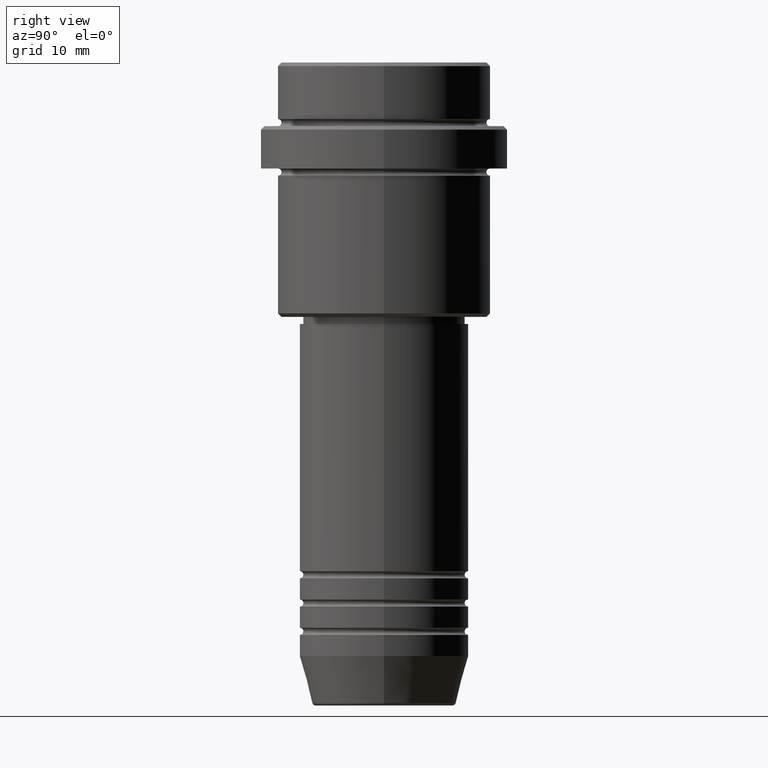
[diagram: clean part render]
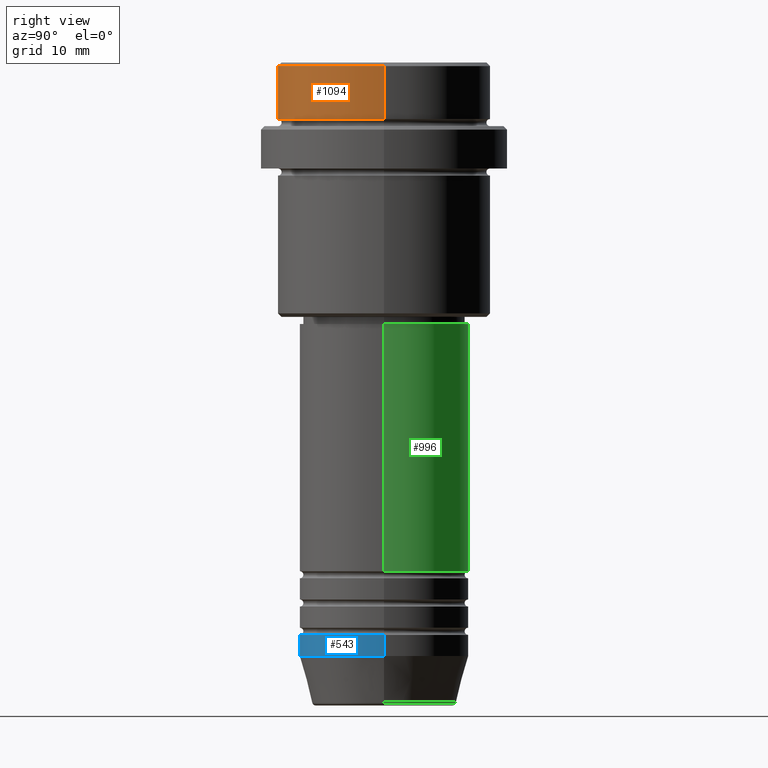
[diagram: same view with three faces highlighted in distinct colors, each labeled with its STEP entity id]
A machine part, right view with three faces highlighted in distinct colors.
Their STEP definitions:

[orange] entity #1094 — the highlighted cylindrical surface (partial cylindrical patch) has radius 15 mm, axis along (-0, -0, 1).
#65 = LINE ( 'NONE', #1151, #299 ) ;
#105 = CARTESIAN_POINT ( 'NONE',  ( 15.00000000000000000, 0.000000000000000000, -7.999999999999998224 ) ) ;
#112 = AXIS2_PLACEMENT_3D ( 'NONE', #682, #929, #1339 ) ;
#152 = CIRCLE ( 'NONE', #1167, 15.00000000000000000 ) ;
#202 = DIRECTION ( 'NONE',  ( 0.000000000000000000, 0.000000000000000000, -1.000000000000000000 ) ) ;
#210 = DIRECTION ( 'NONE',  ( 1.000000000000000000, 0.000000000000000000, 0.000000000000000000 ) ) ;
#288 = CARTESIAN_POINT ( 'NONE',  ( -15.00000000000000000, 1.836970198721029589E-15, 0.000000000000000000 ) ) ;
#299 = VECTOR ( 'NONE', #1061, 1000.000000000000000 ) ;
#306 = VERTEX_POINT ( 'NONE', #957 ) ;
#363 = CYLINDRICAL_SURFACE ( 'NONE', #807, 15.00000000000000000 ) ;
#375 = ORIENTED_EDGE ( 'NONE', *, *, #425, .F. ) ;
#425 = EDGE_CURVE ( 'NONE', #1004, #306, #1272, .T. ) ;
#443 = EDGE_LOOP ( 'NONE', ( #375, #1291, #714, #626 ) ) ;
#487 = EDGE_CURVE ( 'NONE', #601, #306, #152, .T. ) ;
#601 = VERTEX_POINT ( 'NONE', #784 ) ;
#617 = DIRECTION ( 'NONE',  ( 1.000000000000000000, 0.000000000000000000, 0.000000000000000000 ) ) ;
#626 = ORIENTED_EDGE ( 'NONE', *, *, #487, .T. ) ;
#682 = CARTESIAN_POINT ( 'NONE',  ( 0.000000000000000000, 0.000000000000000000, -7.999999999999998224 ) ) ;
#714 = ORIENTED_EDGE ( 'NONE', *, *, #792, .T. ) ;
#715 = CIRCLE ( 'NONE', #112, 15.00000000000000000 ) ;
#784 = CARTESIAN_POINT ( 'NONE',  ( 15.00000000000000000, 0.000000000000000000, -0.4999999999999970024 ) ) ;
#792 = EDGE_CURVE ( 'NONE', #1263, #601, #65, .T. ) ;
#807 = AXIS2_PLACEMENT_3D ( 'NONE', #816, #1155, #617 ) ;
#816 = CARTESIAN_POINT ( 'NONE',  ( 0.000000000000000000, 0.000000000000000000, 0.000000000000000000 ) ) ;
#904 = CARTESIAN_POINT ( 'NONE',  ( -15.00000000000000000, 1.836970198721029589E-15, -7.999999999999998224 ) ) ;
#909 = FACE_OUTER_BOUND ( 'NONE', #443, .T. ) ;
#929 = DIRECTION ( 'NONE',  ( -0.000000000000000000, -0.000000000000000000, 1.000000000000000000 ) ) ;
#934 = VECTOR ( 'NONE', #1168, 1000.000000000000000 ) ;
#955 = EDGE_CURVE ( 'NONE', #1004, #1263, #715, .T. ) ;
#957 = CARTESIAN_POINT ( 'NONE',  ( -15.00000000000000000, 1.836970198721029589E-15, -0.4999999999999970024 ) ) ;
#1004 = VERTEX_POINT ( 'NONE', #904 ) ;
#1061 = DIRECTION ( 'NONE',  ( -0.000000000000000000, -0.000000000000000000, 1.000000000000000000 ) ) ;
#1094 = ADVANCED_FACE ( 'NONE', ( #909 ), #363, .T. ) ;
#1151 = CARTESIAN_POINT ( 'NONE',  ( 15.00000000000000000, 0.000000000000000000, 0.000000000000000000 ) ) ;
#1155 = DIRECTION ( 'NONE',  ( -0.000000000000000000, -0.000000000000000000, 1.000000000000000000 ) ) ;
#1167 = AXIS2_PLACEMENT_3D ( 'NONE', #1312, #202, #210 ) ;
#1168 = DIRECTION ( 'NONE',  ( -0.000000000000000000, -0.000000000000000000, 1.000000000000000000 ) ) ;
#1263 = VERTEX_POINT ( 'NONE', #105 ) ;
#1272 = LINE ( 'NONE', #288, #934 ) ;
#1291 = ORIENTED_EDGE ( 'NONE', *, *, #955, .T. ) ;
#1312 = CARTESIAN_POINT ( 'NONE',  ( 0.000000000000000000, 0.000000000000000000, -0.4999999999999970024 ) ) ;
#1339 = DIRECTION ( 'NONE',  ( 1.000000000000000000, 0.000000000000000000, 0.000000000000000000 ) ) ;

[blue] entity #543 — the highlighted cylindrical surface (partial cylindrical patch) has radius 12 mm, axis along (-0, -0, 1).
#18 = VERTEX_POINT ( 'NONE', #412 ) ;
#25 = CIRCLE ( 'NONE', #297, 12.00000000000000000 ) ;
#44 = VECTOR ( 'NONE', #775, 1000.000000000000000 ) ;
#81 = EDGE_LOOP ( 'NONE', ( #772, #1322, #241, #1169 ) ) ;
#88 = CYLINDRICAL_SURFACE ( 'NONE', #823, 12.00000000000000000 ) ;
#192 = DIRECTION ( 'NONE',  ( 1.000000000000000000, 0.000000000000000000, 0.000000000000000000 ) ) ;
#241 = ORIENTED_EDGE ( 'NONE', *, *, #434, .T. ) ;
#297 = AXIS2_PLACEMENT_3D ( 'NONE', #1180, #1201, #192 ) ;
#314 = DIRECTION ( 'NONE',  ( -0.000000000000000000, -0.000000000000000000, 1.000000000000000000 ) ) ;
#330 = DIRECTION ( 'NONE',  ( -0.000000000000000000, -0.000000000000000000, 1.000000000000000000 ) ) ;
#358 = CARTESIAN_POINT ( 'NONE',  ( 12.00000000000000000, 0.000000000000000000, -80.99999999999998579 ) ) ;
#412 = CARTESIAN_POINT ( 'NONE',  ( -12.00000000000000000, 1.469576158976823947E-15, -83.99999999999998579 ) ) ;
#434 = EDGE_CURVE ( 'NONE', #1079, #607, #497, .T. ) ;
#497 = LINE ( 'NONE', #927, #44 ) ;
#515 = EDGE_CURVE ( 'NONE', #18, #1079, #736, .T. ) ;
#532 = AXIS2_PLACEMENT_3D ( 'NONE', #654, #314, #1089 ) ;
#543 = ADVANCED_FACE ( 'NONE', ( #544 ), #88, .T. ) ;
#544 = FACE_OUTER_BOUND ( 'NONE', #81, .T. ) ;
#549 = CARTESIAN_POINT ( 'NONE',  ( 0.000000000000000000, 0.000000000000000000, 0.000000000000000000 ) ) ;
#560 = EDGE_CURVE ( 'NONE', #861, #607, #25, .T. ) ;
#586 = CARTESIAN_POINT ( 'NONE',  ( 12.00000000000000000, 0.000000000000000000, -83.99999999999998579 ) ) ;
#607 = VERTEX_POINT ( 'NONE', #358 ) ;
#654 = CARTESIAN_POINT ( 'NONE',  ( 0.000000000000000000, 0.000000000000000000, -83.99999999999998579 ) ) ;
#736 = CIRCLE ( 'NONE', #532, 12.00000000000000000 ) ;
#769 = DIRECTION ( 'NONE',  ( 1.000000000000000000, 0.000000000000000000, 0.000000000000000000 ) ) ;
#772 = ORIENTED_EDGE ( 'NONE', *, *, #1007, .F. ) ;
#775 = DIRECTION ( 'NONE',  ( -0.000000000000000000, -0.000000000000000000, 1.000000000000000000 ) ) ;
#823 = AXIS2_PLACEMENT_3D ( 'NONE', #549, #330, #769 ) ;
#861 = VERTEX_POINT ( 'NONE', #1413 ) ;
#894 = LINE ( 'NONE', #1332, #1258 ) ;
#927 = CARTESIAN_POINT ( 'NONE',  ( 12.00000000000000000, 0.000000000000000000, 0.000000000000000000 ) ) ;
#1007 = EDGE_CURVE ( 'NONE', #18, #861, #894, .T. ) ;
#1079 = VERTEX_POINT ( 'NONE', #586 ) ;
#1089 = DIRECTION ( 'NONE',  ( 1.000000000000000000, 0.000000000000000000, 0.000000000000000000 ) ) ;
#1169 = ORIENTED_EDGE ( 'NONE', *, *, #560, .F. ) ;
#1180 = CARTESIAN_POINT ( 'NONE',  ( 0.000000000000000000, 0.000000000000000000, -80.99999999999998579 ) ) ;
#1201 = DIRECTION ( 'NONE',  ( -0.000000000000000000, -0.000000000000000000, 1.000000000000000000 ) ) ;
#1258 = VECTOR ( 'NONE', #1264, 1000.000000000000000 ) ;
#1264 = DIRECTION ( 'NONE',  ( -0.000000000000000000, -0.000000000000000000, 1.000000000000000000 ) ) ;
#1322 = ORIENTED_EDGE ( 'NONE', *, *, #515, .T. ) ;
#1332 = CARTESIAN_POINT ( 'NONE',  ( -12.00000000000000000, 1.469576158976823947E-15, 0.000000000000000000 ) ) ;
#1413 = CARTESIAN_POINT ( 'NONE',  ( -12.00000000000000000, 1.469576158976823947E-15, -80.99999999999998579 ) ) ;

[green] entity #996 — the highlighted cylindrical surface (partial cylindrical patch) has radius 12 mm, axis along (-0, -0, 1).
#6 = ORIENTED_EDGE ( 'NONE', *, *, #973, .F. ) ;
#89 = ORIENTED_EDGE ( 'NONE', *, *, #95, .F. ) ;
#95 = EDGE_CURVE ( 'NONE', #1183, #217, #379, .T. ) ;
#120 = DIRECTION ( 'NONE',  ( 1.000000000000000000, 0.000000000000000000, 0.000000000000000000 ) ) ;
#126 = DIRECTION ( 'NONE',  ( 1.000000000000000000, 0.000000000000000000, 0.000000000000000000 ) ) ;
#159 = DIRECTION ( 'NONE',  ( -0.000000000000000000, -0.000000000000000000, 1.000000000000000000 ) ) ;
#212 = ORIENTED_EDGE ( 'NONE', *, *, #1181, .T. ) ;
#217 = VERTEX_POINT ( 'NONE', #246 ) ;
#246 = CARTESIAN_POINT ( 'NONE',  ( 11.99999999999999822, 0.000000000000000000, -37.00000000000000000 ) ) ;
#270 = DIRECTION ( 'NONE',  ( -0.000000000000000000, -0.000000000000000000, 1.000000000000000000 ) ) ;
#284 = CARTESIAN_POINT ( 'NONE',  ( -11.99999999999999822, 1.469576158976823750E-15, -37.00000000000000000 ) ) ;
#357 = CARTESIAN_POINT ( 'NONE',  ( 0.000000000000000000, 0.000000000000000000, -37.00000000000000000 ) ) ;
#379 = LINE ( 'NONE', #1250, #1280 ) ;
#387 = VERTEX_POINT ( 'NONE', #284 ) ;
#411 = CARTESIAN_POINT ( 'NONE',  ( -12.00000000000000000, 1.469576158976823947E-15, 0.000000000000000000 ) ) ;
#418 = VECTOR ( 'NONE', #531, 1000.000000000000000 ) ;
#464 = DIRECTION ( 'NONE',  ( -0.000000000000000000, -0.000000000000000000, 1.000000000000000000 ) ) ;
#469 = CARTESIAN_POINT ( 'NONE',  ( 0.000000000000000000, 0.000000000000000000, -71.99999999999987210 ) ) ;
#531 = DIRECTION ( 'NONE',  ( -0.000000000000000000, -0.000000000000000000, 1.000000000000000000 ) ) ;
#633 = LINE ( 'NONE', #411, #418 ) ;
#675 = FACE_OUTER_BOUND ( 'NONE', #1211, .T. ) ;
#724 = DIRECTION ( 'NONE',  ( -0.000000000000000000, -0.000000000000000000, 1.000000000000000000 ) ) ;
#760 = AXIS2_PLACEMENT_3D ( 'NONE', #357, #270, #120 ) ;
#937 = AXIS2_PLACEMENT_3D ( 'NONE', #1112, #724, #126 ) ;
#973 = EDGE_CURVE ( 'NONE', #217, #387, #1105, .T. ) ;
#979 = EDGE_CURVE ( 'NONE', #1183, #1036, #1029, .T. ) ;
#993 = ORIENTED_EDGE ( 'NONE', *, *, #979, .T. ) ;
#996 = ADVANCED_FACE ( 'NONE', ( #675 ), #1038, .T. ) ;
#997 = DIRECTION ( 'NONE',  ( 1.000000000000000000, 0.000000000000000000, 0.000000000000000000 ) ) ;
#1029 = CIRCLE ( 'NONE', #1398, 12.00000000000000000 ) ;
#1036 = VERTEX_POINT ( 'NONE', #1219 ) ;
#1038 = CYLINDRICAL_SURFACE ( 'NONE', #937, 12.00000000000000000 ) ;
#1105 = CIRCLE ( 'NONE', #760, 11.99999999999999822 ) ;
#1112 = CARTESIAN_POINT ( 'NONE',  ( 0.000000000000000000, 0.000000000000000000, 0.000000000000000000 ) ) ;
#1181 = EDGE_CURVE ( 'NONE', #1036, #387, #633, .T. ) ;
#1183 = VERTEX_POINT ( 'NONE', #1275 ) ;
#1211 = EDGE_LOOP ( 'NONE', ( #993, #212, #6, #89 ) ) ;
#1219 = CARTESIAN_POINT ( 'NONE',  ( -12.00000000000000000, 1.469576158976823947E-15, -71.99999999999987210 ) ) ;
#1250 = CARTESIAN_POINT ( 'NONE',  ( 12.00000000000000000, 0.000000000000000000, 0.000000000000000000 ) ) ;
#1275 = CARTESIAN_POINT ( 'NONE',  ( 12.00000000000000000, 0.000000000000000000, -71.99999999999987210 ) ) ;
#1280 = VECTOR ( 'NONE', #464, 1000.000000000000000 ) ;
#1398 = AXIS2_PLACEMENT_3D ( 'NONE', #469, #159, #997 ) ;